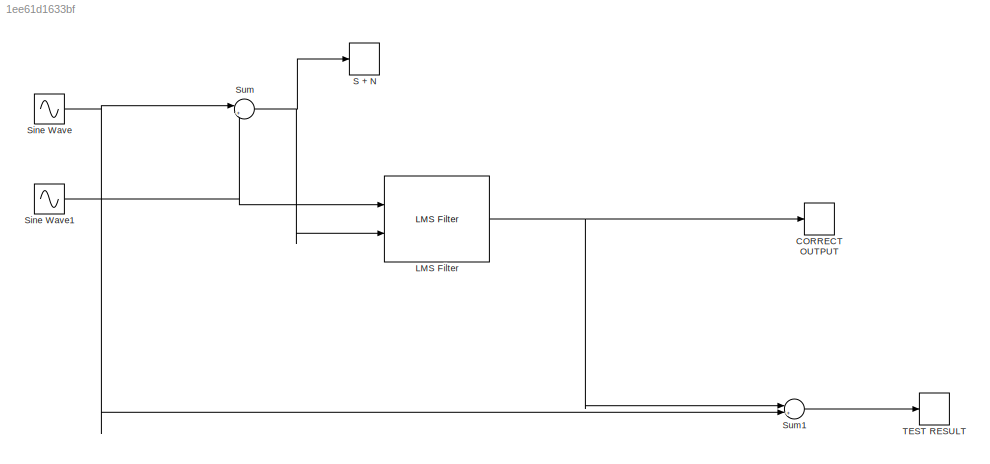
MODEL slx_1ee61d1633bf
KIND model
CONFIG AbsTol = auto
CONFIG FixedStep = auto
CONFIG MaxStep = auto
CONFIG MinStep = auto
CONFIG RelTol = 1e-3
CONFIG SampleTimeConstraint = Unconstrained
CONFIG Solver = ode45
CONFIG SolverMode = Auto
CONFIG SolverName = ode45
CONFIG StartTime = 0.0
CONFIG StopTime = 5
BLOCK [TimeScope] CORRECT OUTPUT
  DefaultConfigurationName = spbscopes.TimeScopeBlockCfg
  NumInputPorts = 1
  Ports = [1]
  ScopeSpecificationString = spbscopes.TimeScopeBlockCfg('CurrentConfiguration', extmgr.ConfigurationSet(extmgr.Configuration('Core','General UI',true),extmgr.Configuration('Core','Source UI',true),extmgr.Configuration('Sources','WiredSimulink',true,'DataLoggingVariableName','ScopeData1'),extmgr.Configuration('Visuals','Time Domain',true,'DisplayPropertyDefaults',struct('MinYLimReal','-2.05164','MaxYLimReal','1.9669','YLabelR...<+1456ch>
  UserDataPersistent = on
BLOCK [Reference] LMS Filter  REF=dspadpt3/LMS Filter
  Adapt = off
  Algo = LMS
  L = 20
  LockScale = off
  Ports = [2, 3]
  ShowPortLabels = off
  SourceBlock = dspadpt3/LMS Filter
  SourceType = LMS Filter
  accum2FracLength = 20
  accum2Mode = User-defined
  accumFracLength = 20
  accumMode = Same as first input
  accumWordLength = 32
  addnparflag = off
  firstCoeffFracLength = 15
  firstCoeffMode = Same word length as first input
  firstCoeffWordLength = 16
  ic = 0.02
  leakage = 1.0
  memoryFracLength = 15
  memoryMode = Same as first input
  memoryWordLength = 16
  mu = 0.002
  overflowMode = off
  prodOutput2FracLength = 20
  prodOutput2Mode = User-defined
  prodOutput3FracLength = 20
  prodOutput3Mode = User-defined
  prodOutput4FracLength = 20
  prodOutput4Mode = User-defined
  prodOutputFracLength = 20
  prodOutputMode = Same as first input
  prodOutputWordLength = 32
  quotientFracLength = 20
  quotientMode = User-defined
  resetflag = None
  roundingMode = Floor
  secondCoeffFracLength = 15
  secondCoeffMode = User-defined
  secondCoeffWordLength = 2
  stepflag = Dialog
  weights = on
BLOCK [TimeScope] S + N
  DefaultConfigurationName = spbscopes.TimeScopeBlockCfg
  NumInputPorts = 1
  Ports = [1]
  ScopeSpecificationString = spbscopes.TimeScopeBlockCfg('CurrentConfiguration', extmgr.ConfigurationSet(extmgr.Configuration('Core','General UI',true),extmgr.Configuration('Core','Source UI',true),extmgr.Configuration('Sources','WiredSimulink',true),extmgr.Configuration('Visuals','Time Domain',true,'DisplayPropertyDefaults',struct('MinYLimReal','-2.27135','MaxYLimReal','2.27135','YLabelReal','Amplitude','MinYLimMag','0','Max...<+1383ch>
  UserDataPersistent = on
BLOCK [Sin] Sine Wave
  Frequency = 2*pi*200
  Ports = [0, 1]
  SampleTime = 0.00001
BLOCK [Sin] Sine Wave1
  Frequency = 2*pi*60
  Ports = [0, 1]
  SampleTime = 0.0001
BLOCK [Sum] Sum
  IconShape = round
  InputSameDT = off
  Inputs = |++
  OutDataTypeStr = Inherit: Inherit via internal rule
  Ports = [2, 1]
  SaturateOnIntegerOverflow = off
BLOCK [Sum] Sum1
  IconShape = round
  InputSameDT = off
  Inputs = |+-
  OutDataTypeStr = Inherit: Inherit via internal rule
  Ports = [2, 1]
  SaturateOnIntegerOverflow = off
BLOCK [TimeScope] TEST RESULT
  DefaultConfigurationName = spbscopes.TimeScopeBlockCfg
  NumInputPorts = 1
  Ports = [1]
  ScopeSpecificationString = spbscopes.TimeScopeBlockCfg('CurrentConfiguration', extmgr.ConfigurationSet(extmgr.Configuration('Core','General UI',true),extmgr.Configuration('Core','Source UI',true),extmgr.Configuration('Sources','WiredSimulink',true,'DataLoggingVariableName','ScopeData2'),extmgr.Configuration('Visuals','Time Domain',true,'DisplayPropertyDefaults',struct('MinYLimReal','-0.864842','MaxYLimReal','0.951638','YLab...<+1486ch>
  UserDataPersistent = on
NET LMS Filter:2 -> CORRECT OUTPUT:1, Sum1:1
NET Sine Wave1:1 -> LMS Filter:1, Sum:2
NET Sine Wave:1 -> Sum1:2, Sum:1
LINE Sum1:1 -> TEST RESULT:1
NET Sum:1 -> LMS Filter:2, S + N:1
note: NET lines group one-source signal fan-out (src -> all destinations, sorted); 1:1 wires keep LINE
